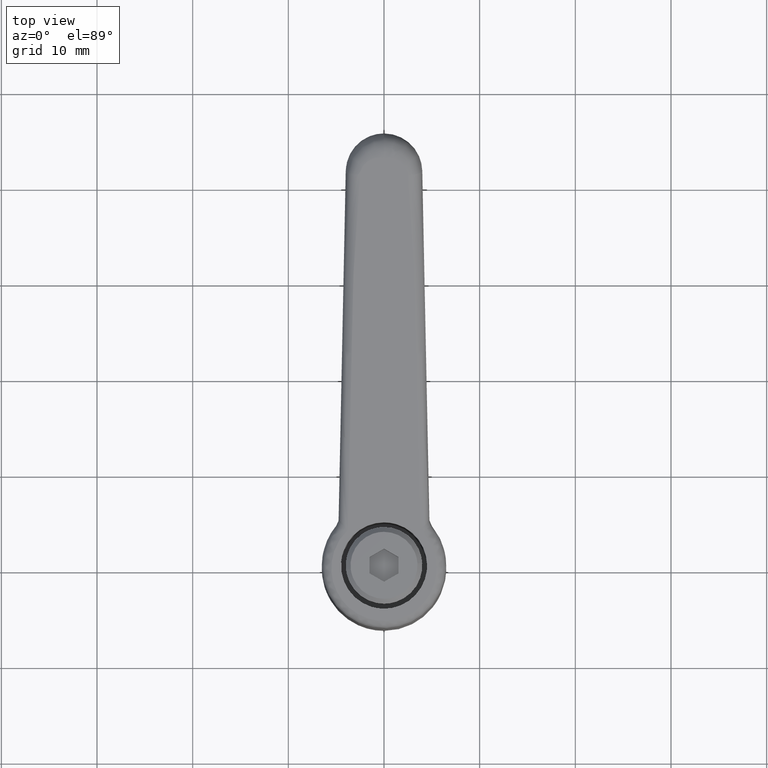
[diagram: clean part render]
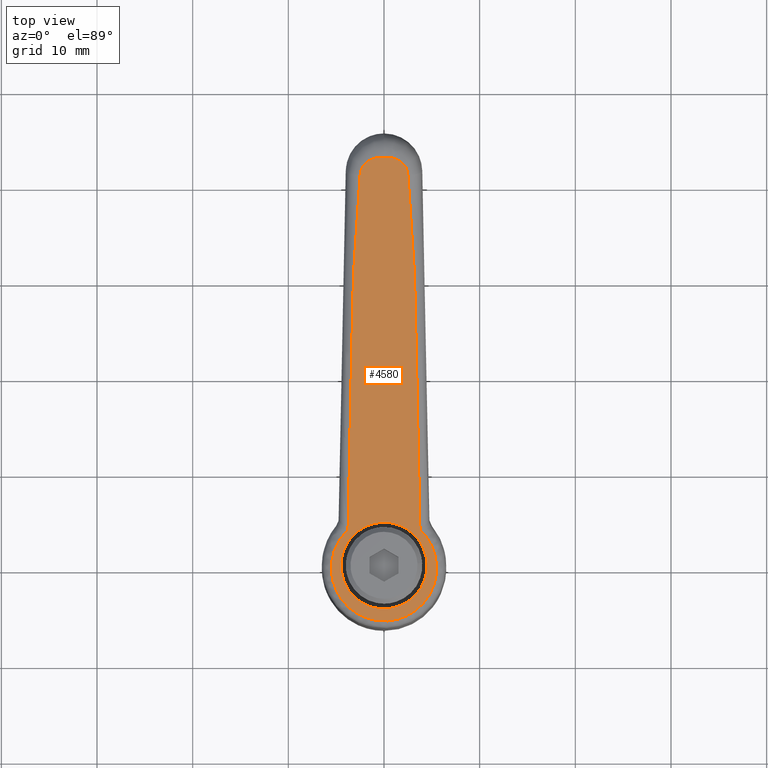
[diagram: same view with one face highlighted and labeled with its STEP entity id]
A machine part, top view. The second image highlights one B-rep face of the part: STEP entity #4580.
In plain terms, the highlighted face is a freeform B-spline surface patch.
Its self-contained STEP definition (entity closure, byte-faithful):
#1680=CARTESIAN_POINT('',(0.431305886389823,4.479282892647603,23.092404446510841));
#1681=VERTEX_POINT('',#1680);
#1687=CARTESIAN_POINT('',(-4.499999999999997,0.0,21.703978576884811));
#1688=VERTEX_POINT('',#1687);
#1689=CARTESIAN_POINT('',(0.431305886389823,4.479282892647603,23.092404446510844));
#1690=CARTESIAN_POINT('',(0.216150500232497,4.500000000000000,23.031826719015953));
#1691=CARTESIAN_POINT('',(8.266093E-016,4.500000000000000,22.970968813794251));
#1692=CARTESIAN_POINT('',(-4.499999999999998,4.500000000000001,21.703978576884815));
#1693=CARTESIAN_POINT('',(-4.499999999999997,0.0,21.703978576884811));
#1701=(BOUNDED_CURVE()B_SPLINE_CURVE(2,(#1689,#1690,#1691,#1692,#1693),.UNSPECIFIED.,.F.,.U.)B_SPLINE_CURVE_WITH_KNOTS((3,2,3),(0.733348904761728,0.750000000000000,1.0),.UNSPECIFIED.)CURVE()GEOMETRIC_REPRESENTATION_ITEM()RATIONAL_B_SPLINE_CURVE((0.963582689685216,0.980492028475573,1.0,0.707106781186547,1.0))REPRESENTATION_ITEM(''));
#1702=EDGE_CURVE('',#1681,#1688,#1701,.T.);
#1704=CARTESIAN_POINT('',(0.088775790446867,-4.499124232451303,22.995963938204859));
#1705=VERTEX_POINT('',#1704);
#1706=CARTESIAN_POINT('',(-4.499999999999997,0.0,21.703978576884811));
#1707=CARTESIAN_POINT('',(-4.499999999999998,-4.500000000000001,21.703978576884815));
#1708=CARTESIAN_POINT('',(-2.755364E-016,-4.500000000000000,22.970968813794251));
#1709=CARTESIAN_POINT('',(0.044392214963072,-4.500000000000000,22.983467592228255));
#1710=CARTESIAN_POINT('',(0.088775790446867,-4.499124232451303,22.995963938204870));
#1718=(BOUNDED_CURVE()B_SPLINE_CURVE(2,(#1706,#1707,#1708,#1709,#1710),.UNSPECIFIED.,.F.,.U.)B_SPLINE_CURVE_WITH_KNOTS((3,2,3),(0.0,0.250000000000000,0.253473588060857),.UNSPECIFIED.)CURVE()GEOMETRIC_REPRESENTATION_ITEM()RATIONAL_B_SPLINE_CURVE((1.0,0.707106781186547,1.0,0.995930438448094,0.991973964739545))REPRESENTATION_ITEM(''));
#1719=EDGE_CURVE('',#1688,#1705,#1718,.T.);
#1763=CARTESIAN_POINT('',(4.499999999999997,-5.510729E-016,24.237959050703690));
#1764=VERTEX_POINT('',#1763);
#1765=CARTESIAN_POINT('',(0.088775790446867,-4.499124232451303,22.995963938204866));
#1766=CARTESIAN_POINT('',(4.499999999999997,-4.412082867021880,24.237959050703680));
#1767=CARTESIAN_POINT('',(4.499999999999997,-5.510729E-016,24.237959050703690));
#1775=(BOUNDED_CURVE()B_SPLINE_CURVE(2,(#1765,#1766,#1767),.UNSPECIFIED.,.F.,.U.)B_SPLINE_CURVE_WITH_KNOTS((3,3),(0.253473588060857,0.500000000000000),.UNSPECIFIED.)CURVE()GEOMETRIC_REPRESENTATION_ITEM()RATIONAL_B_SPLINE_CURVE((0.991973964739545,0.711176342738453,1.0))REPRESENTATION_ITEM(''));
#1776=EDGE_CURVE('',#1705,#1764,#1775,.T.);
#1778=CARTESIAN_POINT('',(4.499999999999997,-5.510729E-016,24.237959050703690));
#1779=CARTESIAN_POINT('',(4.499999999999998,4.087512208951638,24.237959050703694));
#1780=CARTESIAN_POINT('',(0.431305886389823,4.479282892647603,23.092404446510837));
#1788=(BOUNDED_CURVE()B_SPLINE_CURVE(2,(#1778,#1779,#1780),.UNSPECIFIED.,.F.,.U.)B_SPLINE_CURVE_WITH_KNOTS((3,3),(0.500000000000000,0.733348904761728),.UNSPECIFIED.)CURVE()GEOMETRIC_REPRESENTATION_ITEM()RATIONAL_B_SPLINE_CURVE((1.0,0.726614752710975,0.963582689685214))REPRESENTATION_ITEM(''));
#1789=EDGE_CURVE('',#1764,#1681,#1788,.T.);
#3515=CARTESIAN_POINT('',(3.741556348912950,3.758484842251940,24.024416672665250));
#3516=VERTEX_POINT('',#3515);
#3778=CARTESIAN_POINT('',(3.741556339639425,-3.758484852029455,24.024416670054251));
#3779=VERTEX_POINT('',#3778);
#4081=CARTESIAN_POINT('',(42.457967617834562,-0.000015641485440,34.925153358419493));
#4082=VERTEX_POINT('',#4081);
#4120=CARTESIAN_POINT('',(40.644689856448700,2.499459725776835,34.414618864979353));
#4121=VERTEX_POINT('',#4120);
#4135=CARTESIAN_POINT('',(42.457967617834562,-0.000015641485440,34.925153358419493));
#4136=CARTESIAN_POINT('',(42.458038539995997,0.559193268184210,34.925173326794223));
#4137=CARTESIAN_POINT('',(42.444930249225763,0.678562668186222,34.921482643143442));
#4138=CARTESIAN_POINT('',(42.394300991168294,1.139613179104271,34.907227804107720));
#4139=CARTESIAN_POINT('',(42.143265098182333,1.559859147453269,34.836547798435042));
#4140=CARTESIAN_POINT('',(41.897635343854994,1.971054983773257,34.767389909406774));
#4141=CARTESIAN_POINT('',(41.546048833033318,2.206863261596248,34.668399536820083));
#4142=CARTESIAN_POINT('',(41.124782138436608,2.489405881122231,34.549790472555827));
#4143=CARTESIAN_POINT('',(40.644689856448700,2.499459725776835,34.414618864979353));
#4144=B_SPLINE_CURVE_WITH_KNOTS('',2,(#4135,#4136,#4137,#4138,#4139,#4140,#4141,#4142,#4143),.UNSPECIFIED.,.F.,.U.,(3,2,2,2,3),(0.0,0.285714285714285,0.571428571428571,0.785714285714286,1.0),.UNSPECIFIED.);
#4145=EDGE_CURVE('',#4082,#4121,#4144,.T.);
#4202=CARTESIAN_POINT('',(40.644689856448700,2.499459725776835,34.414618864979353));
#4203=CARTESIAN_POINT('',(38.594148231963587,2.541475235695460,33.837281927512862));
#4204=CARTESIAN_POINT('',(36.547423999486000,2.784565128869835,33.261019789691737));
#4205=CARTESIAN_POINT('',(34.498791071004653,2.927117830416335,32.684220252047950));
#4206=CARTESIAN_POINT('',(32.450158142523300,3.069670531962835,32.107420714404149));
#4207=CARTESIAN_POINT('',(30.401525214041900,3.212223233509335,31.530621176760349));
#4208=CARTESIAN_POINT('',(28.350983589556751,3.254238743427960,30.953284239293900));
#4209=CARTESIAN_POINT('',(20.147841179105150,3.422320779507944,28.643661717956132));
#4210=CARTESIAN_POINT('',(11.944698768653540,3.590402815587928,26.334039196618360));
#4211=CARTESIAN_POINT('',(3.741556348912950,3.758484842251940,24.024416672665250));
#4212=B_SPLINE_CURVE_WITH_KNOTS('',3,(#4202,#4203,#4204,#4205,#4206,#4207,#4208,#4209,#4210,#4211),.UNSPECIFIED.,.F.,.U.,(4,3,3,4),(0.0,0.055555555555555,0.111111111111111,0.333359773841089),.UNSPECIFIED.);
#4213=EDGE_CURVE('',#4121,#3516,#4212,.T.);
#4297=CARTESIAN_POINT('',(40.644689856570999,-2.499459725774400,34.414618865013750));
#4298=VERTEX_POINT('',#4297);
#4334=CARTESIAN_POINT('',(40.644689856570999,-2.499459725774400,34.414618865013750));
#4335=CARTESIAN_POINT('',(41.292010561922091,-2.485903870531714,34.596874201420242));
#4336=CARTESIAN_POINT('',(41.786178508728149,-2.013602694383776,34.736008860086201));
#4337=CARTESIAN_POINT('',(42.183089578819121,-1.634254809841695,34.847760515803209));
#4338=CARTESIAN_POINT('',(42.355579730826271,-1.101848444359677,34.896325702149007));
#4339=CARTESIAN_POINT('',(42.444842058775123,-0.826332242161665,34.921457812823448));
#4340=CARTESIAN_POINT('',(42.458782854430673,-0.489465939499723,34.925382891043533));
#4341=CARTESIAN_POINT('',(42.468911286120630,-0.244721850320762,34.928234585280507));
#4342=CARTESIAN_POINT('',(42.457967617834562,-0.000015641485440,34.925153358419493));
#4343=B_SPLINE_CURVE_WITH_KNOTS('',2,(#4334,#4335,#4336,#4337,#4338,#4339,#4340,#4341,#4342),.UNSPECIFIED.,.F.,.U.,(3,2,2,2,3),(0.0,0.285714285714285,0.571428571428571,0.785714285714286,1.0),.UNSPECIFIED.);
#4344=EDGE_CURVE('',#4298,#4082,#4343,.T.);
#4454=CARTESIAN_POINT('',(3.741556348912950,3.758484842251940,24.024416672665250));
#4455=CARTESIAN_POINT('',(2.613139403515386,4.959543020966351,23.706707060891489));
#4456=CARTESIAN_POINT('',(1.032099445580706,5.341404178719200,23.261559907365498));
#4457=CARTESIAN_POINT('',(-0.624181604022181,5.741437964070228,22.795228369715510));
#4458=CARTESIAN_POINT('',(-2.192471926375449,5.152285785134270,22.353670919257478));
#4459=CARTESIAN_POINT('',(-3.810883881900226,4.544304650248243,21.898001553269161));
#4460=CARTESIAN_POINT('',(-4.783181073866730,3.144328942083274,21.624247986692271));
#4461=CARTESIAN_POINT('',(-5.260095932126037,2.457636414384234,21.489970993525240));
#4462=CARTESIAN_POINT('',(-5.515229278830568,1.647916624146206,21.418137335884211));
#4463=CARTESIAN_POINT('',(-5.770869703846800,0.836587513332265,21.346160908627549));
#4464=CARTESIAN_POINT('',(-5.771016191066890,7.221335E-009,21.346119664654729));
#4465=CARTESIAN_POINT('',(-5.771162351260350,-0.834719852034760,21.346078512757369));
#4466=CARTESIAN_POINT('',(-5.515229283165072,-1.647916610380662,21.418137334663822));
#4467=CARTESIAN_POINT('',(-5.260924864110520,-2.455938530906754,21.489737604918268));
#4468=CARTESIAN_POINT('',(-4.783181082079061,-3.144328930253737,21.624247984380059));
#4469=CARTESIAN_POINT('',(-3.812428997375039,-4.543104676564713,21.897566520775499));
#4470=CARTESIAN_POINT('',(-2.192471939731651,-5.152285780113730,22.353670915496991));
#4471=CARTESIAN_POINT('',(-0.626072853114904,-5.741326532570756,22.794695882129719));
#4472=CARTESIAN_POINT('',(1.032099432001138,-5.341404181994691,23.261559903542128));
#4473=CARTESIAN_POINT('',(2.612481245364900,-4.960243541884735,23.706521754235709));
#4474=CARTESIAN_POINT('',(3.741556339639425,-3.758484852029455,24.024416670054251));
#4475=B_SPLINE_CURVE_WITH_KNOTS('',2,(#4454,#4455,#4456,#4457,#4458,#4459,#4460,#4461,#4462,#4463,#4464,#4465,#4466,#4467,#4468,#4469,#4470,#4471,#4472,#4473,#4474),.UNSPECIFIED.,.F.,.U.,(3,2,2,2,2,2,2,2,2,2,3),(0.0,0.125000000000000,0.250000000000000,0.375000000000000,0.437500000000000,0.500000000000000,0.562500000000000,0.625000000000000,0.750000000000000,0.875000000000000,1.0),.UNSPECIFIED.);
#4476=EDGE_CURVE('',#3516,#3779,#4475,.T.);
#4519=CARTESIAN_POINT('',(3.741556339639425,-3.758484852029455,24.024416670054251));
#4520=CARTESIAN_POINT('',(11.944698756317880,-3.590402815840754,26.334039193145220));
#4521=CARTESIAN_POINT('',(20.147841172978069,-3.422320779633557,28.643661716231030));
#4522=CARTESIAN_POINT('',(28.350983589638250,-3.254238743426360,30.953284239316851));
#4523=CARTESIAN_POINT('',(30.401525214130199,-3.212223233507595,31.530621176785210));
#4524=CARTESIAN_POINT('',(32.450158142618363,-3.069670531960955,32.107420714430901));
#4525=CARTESIAN_POINT('',(34.498791071106552,-2.927117830414315,32.684220252076649));
#4526=CARTESIAN_POINT('',(36.547423999594699,-2.784565128867675,33.261019789722347));
#4527=CARTESIAN_POINT('',(38.594148232079100,-2.541475235693165,33.837281927545412));
#4528=CARTESIAN_POINT('',(40.644689856570999,-2.499459725774400,34.414618865013750));
#4529=B_SPLINE_CURVE_WITH_KNOTS('',3,(#4519,#4520,#4521,#4522,#4523,#4524,#4525,#4526,#4527,#4528),.UNSPECIFIED.,.F.,.U.,(4,3,3,4),(0.666640225991438,0.888888888888889,0.944444444444445,1.0),.UNSPECIFIED.);
#4530=EDGE_CURVE('',#3779,#4298,#4529,.T.);
#4562=CARTESIAN_POINT('',(44.872938675296787,-6.049746628549698,35.605096636691421));
#4563=CARTESIAN_POINT('',(-8.180337411974591,-6.049746628549698,20.667767116995009));
#4564=CARTESIAN_POINT('',(44.872938675296787,6.049826024919160,35.605096636691421));
#4565=CARTESIAN_POINT('',(-8.180337411974591,6.049826024919160,20.667767116995009));
#4566=B_SPLINE_SURFACE_WITH_KNOTS('',1,1,((#4562,#4564),(#4563,#4565)),.UNSPECIFIED.,.F.,.F.,.U.,(2,2),(2,2),(0.0,55.116004180022301),(0.0,12.099572653468860),.UNSPECIFIED.);
#4567=ORIENTED_EDGE('',*,*,#4344,.T.);
#4568=ORIENTED_EDGE('',*,*,#4145,.T.);
#4569=ORIENTED_EDGE('',*,*,#4213,.T.);
#4570=ORIENTED_EDGE('',*,*,#4476,.T.);
#4571=ORIENTED_EDGE('',*,*,#4530,.T.);
#4572=EDGE_LOOP('',(#4567,#4568,#4569,#4570,#4571));
#4573=FACE_OUTER_BOUND('',#4572,.T.);
#4574=ORIENTED_EDGE('',*,*,#1789,.F.);
#4575=ORIENTED_EDGE('',*,*,#1776,.F.);
#4576=ORIENTED_EDGE('',*,*,#1719,.F.);
#4577=ORIENTED_EDGE('',*,*,#1702,.F.);
#4578=EDGE_LOOP('',(#4574,#4575,#4576,#4577));
#4579=FACE_BOUND('',#4578,.T.);
#4580=ADVANCED_FACE('',(#4573,#4579),#4566,.F.);